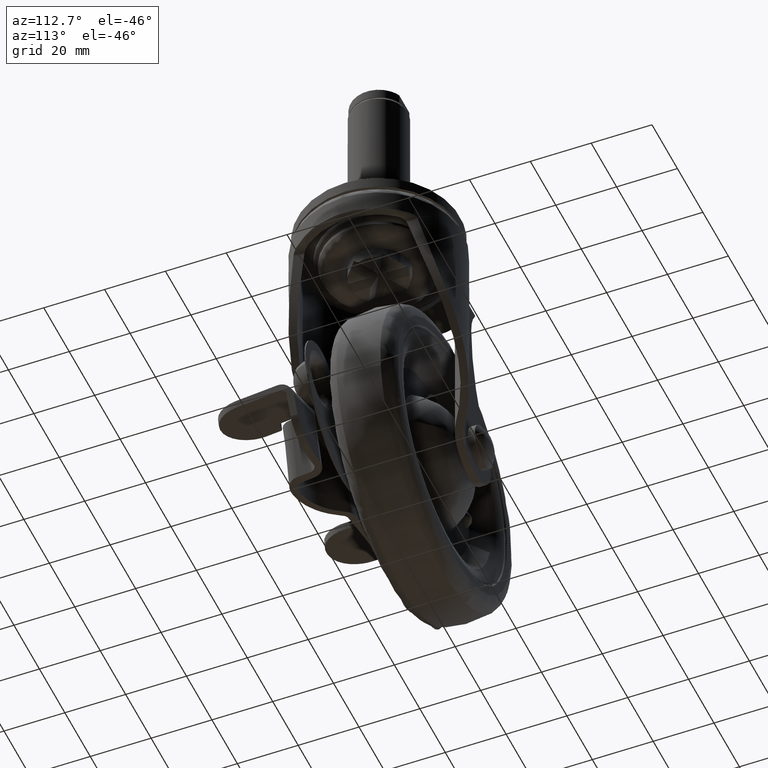
[diagram: clean part render]
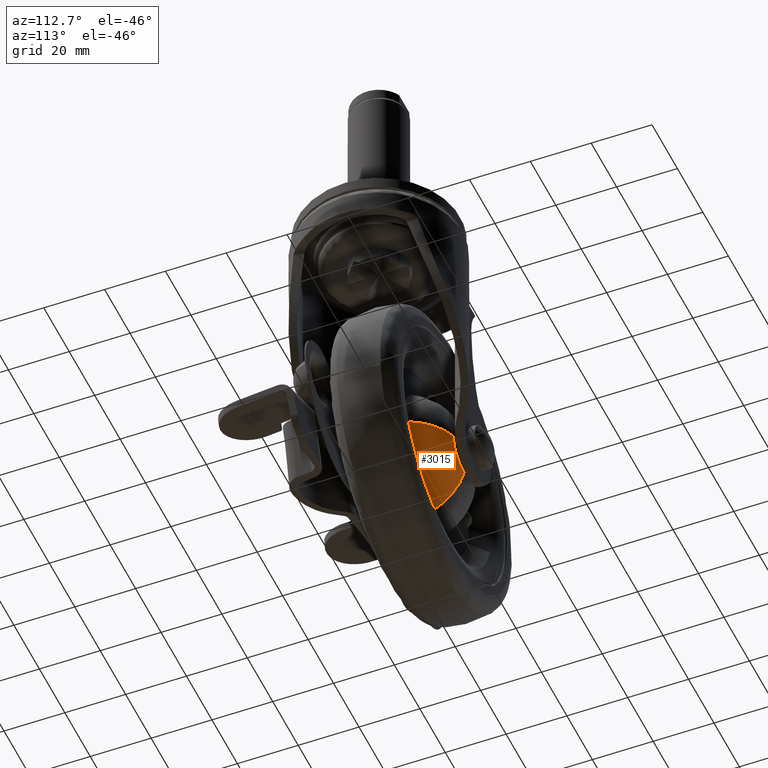
[diagram: same view with one face highlighted and labeled with its STEP entity id]
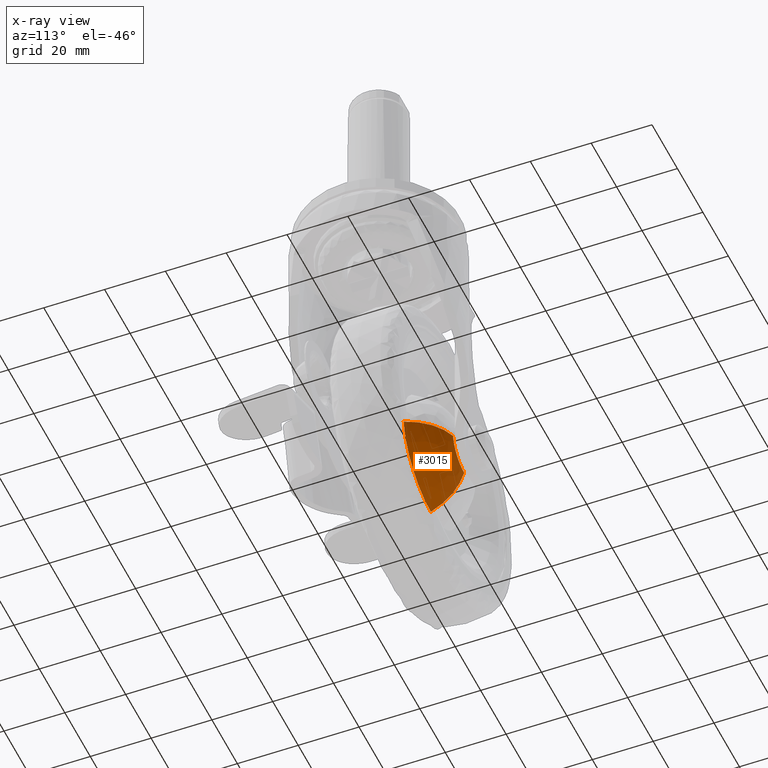
[diagram: x-ray of the same camera — body ghosted, the highlighted face saturated]
A machine part, auxiliary view. The second image highlights one B-rep face of the part: STEP entity #3015.
The next image is the same camera in x-ray: the body ghosted, the highlighted face saturated — about 4% of this face is hidden behind the body in this view.
In plain terms, the highlighted face is a freeform B-spline surface patch.
Its self-contained STEP definition (entity closure, byte-faithful):
#1737=CARTESIAN_POINT('',(-24.256834683761660,14.250024289571030,-75.016739356117512));
#1738=VERTEX_POINT('',#1737);
#1754=CARTESIAN_POINT('',(-32.999587000000091,14.250027549159480,-82.802075206514871));
#1755=VERTEX_POINT('',#1754);
#1756=CARTESIAN_POINT('',(-32.999587000000091,14.250027549159480,-82.802075206514871));
#1757=CARTESIAN_POINT('',(-25.161816783593572,14.250025919365266,-82.802081470140806));
#1758=CARTESIAN_POINT('',(-24.256834683761664,14.250024289571034,-75.016739356117526));
#1766=(BOUNDED_CURVE()B_SPLINE_CURVE(2,(#1756,#1757,#1758),.UNSPECIFIED.,.F.,.U.)B_SPLINE_CURVE_WITH_KNOTS((3,3),(0.0,0.229999999957138),.UNSPECIFIED.)CURVE()GEOMETRIC_REPRESENTATION_ITEM()RATIONAL_B_SPLINE_CURVE((1.0,0.730538238741839,0.956886118106298))REPRESENTATION_ITEM(''));
#1767=EDGE_CURVE('',#1755,#1738,#1766,.T.);
#2905=CARTESIAN_POINT('',(-32.999587000000091,3.283131943072509,-95.508910000009081));
#2906=VERTEX_POINT('',#2905);
#2907=CARTESIAN_POINT('',(-32.999587000000091,3.283131943072509,-95.508910000009081));
#2908=CARTESIAN_POINT('',(-32.999587000000098,4.979442656247064,-94.789203997278520));
#2909=CARTESIAN_POINT('',(-32.999587000000091,6.505843357558834,-93.756950314654532));
#2910=CARTESIAN_POINT('',(-32.999587000000091,12.444813716739581,-89.740623527729895));
#2911=CARTESIAN_POINT('',(-32.999587000000091,14.250027549159483,-82.802075206514871));
#2919=(BOUNDED_CURVE()B_SPLINE_CURVE(2,(#2907,#2908,#2909,#2910,#2911),.UNSPECIFIED.,.F.,.U.)B_SPLINE_CURVE_WITH_KNOTS((3,2,3),(0.610624007252585,0.666666666666667,0.867929683444395),.UNSPECIFIED.)CURVE()GEOMETRIC_REPRESENTATION_ITEM()RATIONAL_B_SPLINE_CURVE((0.951989049157681,0.971142826308263,1.0,0.896366769643011,0.917878758766435))REPRESENTATION_ITEM(''));
#2920=EDGE_CURVE('',#2906,#1755,#2919,.T.);
#2939=CARTESIAN_POINT('',(-11.635000235841050,3.283131942718920,-76.483922795421506));
#2940=VERTEX_POINT('',#2939);
#2956=CARTESIAN_POINT('',(-11.635000235841050,3.283131942718920,-76.483922795421506));
#2957=CARTESIAN_POINT('',(-12.349892584758715,4.979442655945466,-76.400822496097547));
#2958=CARTESIAN_POINT('',(-13.375242182090480,6.505843357558834,-76.281634120139771));
#2959=CARTESIAN_POINT('',(-17.364702209969849,12.444807591279853,-75.817892521265890));
#2960=CARTESIAN_POINT('',(-24.256834683761657,14.250024289571028,-75.016739356117512));
#2968=(BOUNDED_CURVE()B_SPLINE_CURVE(2,(#2956,#2957,#2958,#2959,#2960),.UNSPECIFIED.,.F.,.U.)B_SPLINE_CURVE_WITH_KNOTS((3,2,3),(0.610624007241831,0.666666666666667,0.867929497373989),.UNSPECIFIED.)CURVE()GEOMETRIC_REPRESENTATION_ITEM()RATIONAL_B_SPLINE_CURVE((0.910945105801477,0.929273089269522,0.956886118190660,0.857721010358382,0.878305404384431))REPRESENTATION_ITEM(''));
#2969=EDGE_CURVE('',#2940,#1738,#2968,.T.);
#2974=CARTESIAN_POINT('',(-32.999587000000083,2.478462771529382,-95.828876686864589));
#2975=CARTESIAN_POINT('',(-32.999587000000091,4.616512474125657,-95.034641526695438));
#2976=CARTESIAN_POINT('',(-32.999587000000091,6.505843357558834,-93.756950314654532));
#2977=CARTESIAN_POINT('',(-32.999587000000083,12.871064475888312,-89.452364412364972));
#2978=CARTESIAN_POINT('',(-32.999587000000098,14.454428709300192,-81.933158511488912));
#2979=CARTESIAN_POINT('',(-13.561569331596717,2.478462771529382,-95.828876686864589));
#2980=CARTESIAN_POINT('',(-14.268829150232309,4.616512474125658,-95.034641526695452));
#2981=CARTESIAN_POINT('',(-15.406602570774247,6.505843357558834,-93.756950314654546));
#2982=CARTESIAN_POINT('',(-19.239800592259758,12.871064475888309,-89.452364412364972));
#2983=CARTESIAN_POINT('',(-25.935591043798894,14.454428709300190,-81.933158511488926));
#2984=CARTESIAN_POINT('',(-11.317173601868486,2.478462771529381,-76.520867501929445));
#2985=CARTESIAN_POINT('',(-12.106096630396836,4.616512474125655,-76.429161751256061));
#2986=CARTESIAN_POINT('',(-13.375242182090480,6.505843357558834,-76.281634120139771));
#2987=CARTESIAN_POINT('',(-17.651037458984874,12.871064475888314,-75.784608426359739));
#2988=CARTESIAN_POINT('',(-25.119952194746539,14.454428709300185,-74.916409111863487));
#2996=(BOUNDED_SURFACE()B_SPLINE_SURFACE(2,2,((#2974,#2979,#2984),(#2975,#2980,#2985),(#2976,#2981,#2986),(#2977,#2982,#2987),(#2978,#2983,#2988)),.UNSPECIFIED.,.F.,.F.,.U.)B_SPLINE_SURFACE_WITH_KNOTS((3,2,3),(3,3),(0.0,4.776473257345144,19.621015837018199),(0.0,33.236677802198642),.UNSPECIFIED.)GEOMETRIC_REPRESENTATION_ITEM()RATIONAL_B_SPLINE_SURFACE(((0.943714174175419,0.689419290630431,0.903026992808221),(0.964524902419727,0.704622323387918,0.922940489774638),(1.0,0.730538238691624,0.956886118190660),(0.889748865287040,0.649995568924665,0.851388337869060),(0.921136559927795,0.672925480084112,0.881422787152806)))REPRESENTATION_ITEM('')SURFACE());
#2997=ORIENTED_EDGE('',*,*,#1767,.T.);
#2998=ORIENTED_EDGE('',*,*,#2969,.F.);
#2999=CARTESIAN_POINT('',(-32.999587000000091,3.283131943072509,-95.508910000009081));
#3000=CARTESIAN_POINT('',(-13.846497011481850,3.283131943094050,-95.508909999999943));
#3001=CARTESIAN_POINT('',(-11.635000235841053,3.283131942718920,-76.483922795421506));
#3009=(BOUNDED_CURVE()B_SPLINE_CURVE(2,(#2999,#3000,#3001),.UNSPECIFIED.,.F.,.U.)B_SPLINE_CURVE_WITH_KNOTS((3,3),(0.0,0.229999999993937),.UNSPECIFIED.)CURVE()GEOMETRIC_REPRESENTATION_ITEM()RATIONAL_B_SPLINE_CURVE((1.0,0.730538238698726,0.956886118178727))REPRESENTATION_ITEM(''));
#3010=EDGE_CURVE('',#2906,#2940,#3009,.T.);
#3011=ORIENTED_EDGE('',*,*,#3010,.F.);
#3012=ORIENTED_EDGE('',*,*,#2920,.T.);
#3013=EDGE_LOOP('',(#2997,#2998,#3011,#3012));
#3014=FACE_OUTER_BOUND('',#3013,.T.);
#3015=ADVANCED_FACE('',(#3014),#2996,.T.);